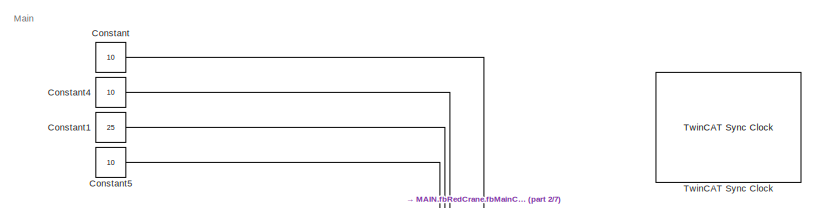
[diagram: root canvas - part 1/7, top left region]
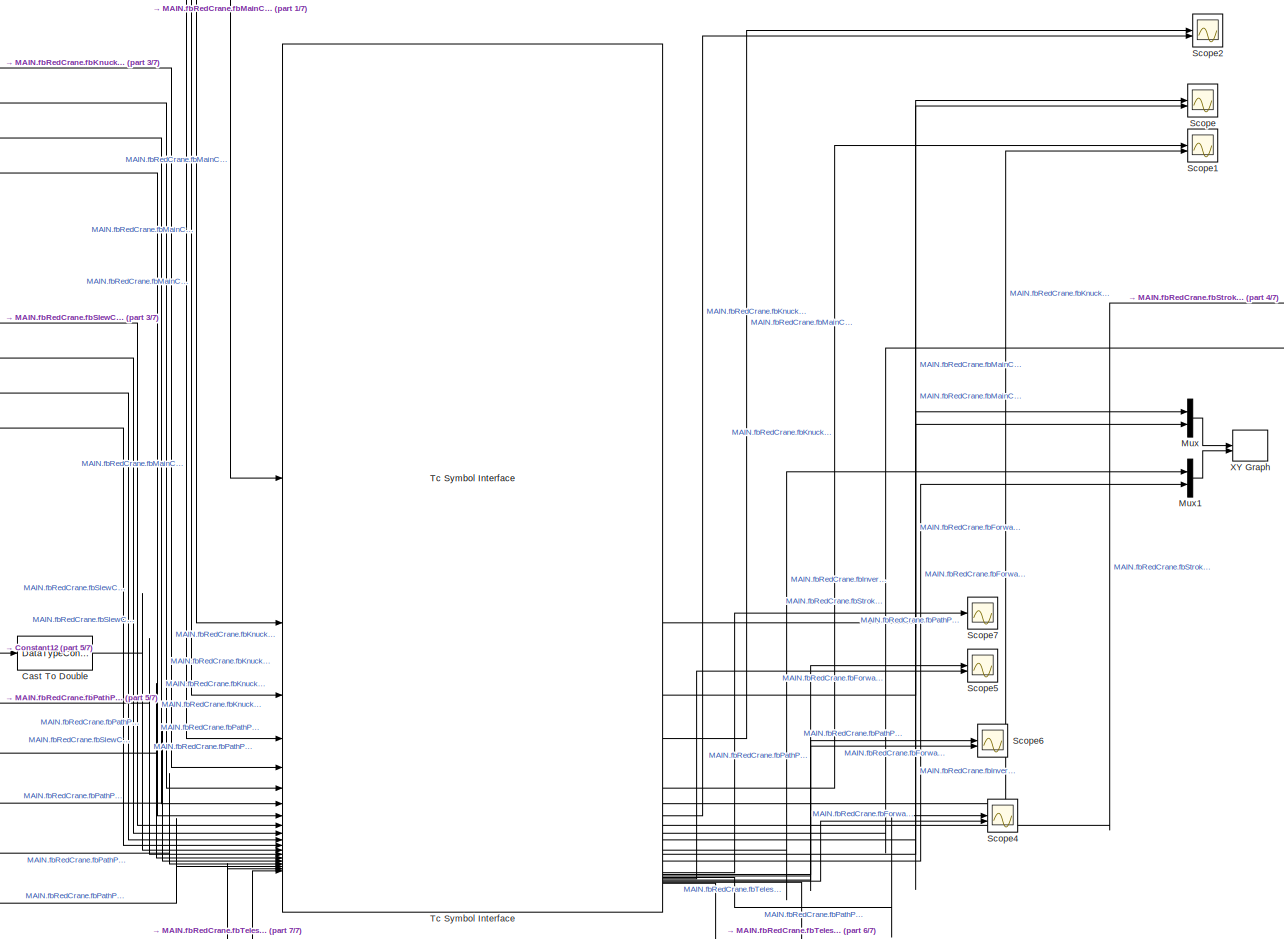
[diagram: root canvas - part 2/7, central region]
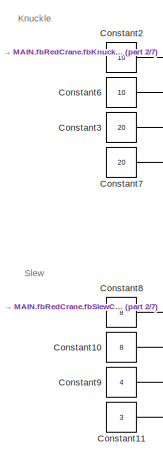
[diagram: root canvas - part 3/7, middle left region]
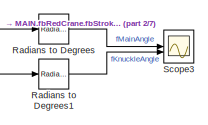
[diagram: root canvas - part 4/7, middle right region]
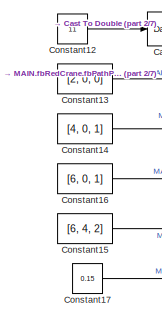
[diagram: root canvas - part 5/7, bottom left region]
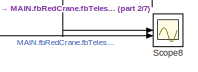
[diagram: root canvas - part 6/7, bottom center region]
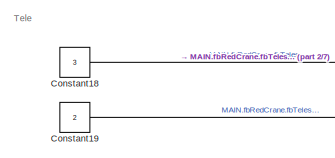
[diagram: root canvas - part 7/7, bottom left region]
MODEL slx_60fb69a7b723
KIND model
CONFIG AbsTol = auto
CONFIG EnableMultiTasking = off
CONFIG FixedStep = 0.01
CONFIG MaxStep = auto
CONFIG MinStep = auto
CONFIG RelTol = 1e-3
CONFIG SampleTimeConstraint = Unconstrained
CONFIG SolverName = FixedStepAuto
CONFIG StartTime = 0.0
CONFIG StopTime = inf
BLOCK [DataTypeConversion] Cast To Double
  OutDataTypeStr = uint16
  RndMeth = Floor
  SaturateOnIntegerOverflow = off
BLOCK [Constant] Constant
  Value = 10
BLOCK [Constant] Constant1
  Value = 25
BLOCK [Constant] Constant10
  Value = 8
BLOCK [Constant] Constant11
  Value = 3
BLOCK [Constant] Constant12
  Value = 11
BLOCK [Constant] Constant13
  Value = [2, 0,  0]
BLOCK [Constant] Constant14
  Value = [4, 0, 1]
BLOCK [Constant] Constant15
  Value = [6, 4,  2]
BLOCK [Constant] Constant16
  Value = [6, 0,  1]
BLOCK [Constant] Constant17
  Value = 0.15
BLOCK [Constant] Constant18
  Value = 3
BLOCK [Constant] Constant19
  Value = 2
BLOCK [Constant] Constant2
  Value = 10
BLOCK [Constant] Constant3
  Value = 20
BLOCK [Constant] Constant4
  Value = 10
BLOCK [Constant] Constant5
  Value = 10
BLOCK [Constant] Constant6
  Value = 10
BLOCK [Constant] Constant7
  Value = 20
BLOCK [Constant] Constant8
  Value = 8
BLOCK [Constant] Constant9
  Value = 4
BLOCK [Mux] Mux
  DisplayOption = bar
  Inputs = 2
BLOCK [Mux] Mux1
  DisplayOption = bar
  Inputs = 2
BLOCK [Reference] Radians to Degrees  REF=simulink_extras/Transformations/Radians
to Degrees
  Commented = on
  SourceBlock = simulink_extras/Transformations/Radians\nto Degrees
  SourceType = RadiansToDegrees
BLOCK [Reference] Radians to Degrees1  REF=simulink_extras/Transformations/Radians
to Degrees
  Commented = on
  SourceBlock = simulink_extras/Transformations/Radians\nto Degrees
  SourceType = RadiansToDegrees
BLOCK [Scope] Scope
  Floating = off
  NumInputPorts = 2
  ScopeSpecificationString = Simulink.scopes.TimeScopeBlockCfg('CurrentConfiguration', extmgr.ConfigurationSet(extmgr.Configuration('Core','General UI',true),extmgr.Configuration('Core','Source UI',true),extmgr.Configuration('Sources','WiredSimulink',true),extmgr.Configuration('Visuals','Time Domain',true,'SerializedDisplays',{struct('MinYLimReal','-0.00197','MaxYLimReal','1.00396','YLabelReal','','MinYLimMag','0.00000','MaxY...<+1648ch>
BLOCK [Scope] Scope1
  Floating = off
  NumInputPorts = 2
  ScopeSpecificationString = Simulink.scopes.TimeScopeBlockCfg('CurrentConfiguration', extmgr.ConfigurationSet(extmgr.Configuration('Core','General UI',true),extmgr.Configuration('Core','Source UI',true),extmgr.Configuration('Sources','WiredSimulink',true,'DataLoggingVariableName','ScopeData1'),extmgr.Configuration('Visuals','Time Domain',true,'SerializedDisplays',{struct('MinYLimReal','0.22865','MaxYLimReal','0.4617','YLabel...<+1738ch>
BLOCK [Scope] Scope2
  Floating = off
  NumInputPorts = 2
  ScopeSpecificationString = Simulink.scopes.TimeScopeBlockCfg('CurrentConfiguration', extmgr.ConfigurationSet(extmgr.Configuration('Core','General UI',true),extmgr.Configuration('Core','Source UI',true),extmgr.Configuration('Sources','WiredSimulink',true,'DataLoggingVariableName','ScopeData1'),extmgr.Configuration('Visuals','Time Domain',true,'SerializedDisplays',{struct('MinYLimReal','-416814.61619','MaxYLimReal','3751330.9...<+1621ch>
BLOCK [Scope] Scope3
  Commented = on
  Floating = off
  NumInputPorts = 2
  ScopeSpecificationString = Simulink.scopes.TimeScopeBlockCfg('CurrentConfiguration', extmgr.ConfigurationSet(extmgr.Configuration('Core','General UI',true),extmgr.Configuration('Core','Source UI',true),extmgr.Configuration('Sources','WiredSimulink',true,'DataLoggingVariableName','ScopeData2'),extmgr.Configuration('Visuals','Time Domain',true,'SerializedDisplays',{struct('MinYLimReal','-61.2033','MaxYLimReal','4.40093','YLab...<+1522ch>
BLOCK [Scope] Scope4
  Floating = off
  NumInputPorts = 2
  ScopeSpecificationString = Simulink.scopes.TimeScopeBlockCfg('CurrentConfiguration', extmgr.ConfigurationSet(extmgr.Configuration('Core','General UI',true),extmgr.Configuration('Core','Source UI',true),extmgr.Configuration('Sources','WiredSimulink',true,'DataLoggingVariableName','ScopeData1'),extmgr.Configuration('Visuals','Time Domain',true,'SerializedDisplays',{struct('MinYLimReal','-0.10166','MaxYLimReal','0.15619','YLab...<+1579ch>
BLOCK [Scope] Scope5
  Floating = off
  NumInputPorts = 2
  ScopeSpecificationString = Simulink.scopes.TimeScopeBlockCfg('CurrentConfiguration', extmgr.ConfigurationSet(extmgr.Configuration('Core','General UI',true),extmgr.Configuration('Core','Source UI',true),extmgr.Configuration('Sources','WiredSimulink',true,'DataLoggingVariableName','ScopeData2'),extmgr.Configuration('Visuals','Time Domain',true,'SerializedDisplays',{struct('MinYLimReal','1.87013','MaxYLimReal','2.19047','YLabe...<+1578ch>
BLOCK [Scope] Scope6
  Floating = off
  NumInputPorts = 2
  ScopeSpecificationString = Simulink.scopes.TimeScopeBlockCfg('CurrentConfiguration', extmgr.ConfigurationSet(extmgr.Configuration('Core','General UI',true),extmgr.Configuration('Core','Source UI',true),extmgr.Configuration('Sources','WiredSimulink',true,'DataLoggingVariableName','ScopeData3'),extmgr.Configuration('Visuals','Time Domain',true,'SerializedDisplays',{struct('MinYLimReal','-0.15477','MaxYLimReal','0.12107','YLab...<+1624ch>
BLOCK [Scope] Scope7
  Floating = off
  NumInputPorts = 1
  ScopeSpecificationString = Simulink.scopes.TimeScopeBlockCfg('CurrentConfiguration', extmgr.ConfigurationSet(extmgr.Configuration('Core','General UI',true),extmgr.Configuration('Core','Source UI',true),extmgr.Configuration('Sources','WiredSimulink',true,'DataLoggingVariableName','ScopeData4'),extmgr.Configuration('Visuals','Time Domain',true,'SerializedDisplays',{struct('MinYLimReal','-1.00000','MaxYLimReal','1.00000','YLab...<+1561ch>
BLOCK [Scope] Scope8
  Floating = off
  NumInputPorts = 2
  ScopeSpecificationString = Simulink.scopes.TimeScopeBlockCfg('CurrentConfiguration', extmgr.ConfigurationSet(extmgr.Configuration('Core','General UI',true),extmgr.Configuration('Core','Source UI',true),extmgr.Configuration('Sources','WiredSimulink',true,'DataLoggingVariableName','ScopeData1'),extmgr.Configuration('Visuals','Time Domain',true,'SerializedDisplays',{struct('MinYLimReal','-0.01246','MaxYLimReal','0.11211','YLab...<+1603ch>
BLOCK [Reference] Tc Symbol Interface  REF=TcSimInterface/Tc Symbol Interface
  SourceBlock = TcSimInterface/Tc Symbol Interface
  SourceProductName = Beckhoff TwinCAT Interface
  SourceType = Tc Symbol Interface
BLOCK [Reference] TwinCAT Sync Clock  REF=TcSimInterface/TwinCAT Sync Clock
  SourceBlock = TcSimInterface/TwinCAT Sync Clock
  SourceProductName = Beckhoff TwinCAT Interface
  SourceType = TwinCAT Sync Clock
BLOCK [Record] XY Graph
  CompatibilityTag = XY
  FileSettingsInternal = {"entries":[{"content":{"excelSettings":{"content":{},"type":"Streamout.ExcelSettings"}},"type":"Streamout.FileSettingStorage","uuid":""}],"packageUris":["http:\/\/schema.mathworks.com\/mf0\/streamout_blocks\/R2020a"],"version":"1.0"}
  Layout = [1 1]
  SignalsInternal = {"entries":[{"content":{"signals":[{"content":{"blockPath":[],"dimensions":[2],"domain":"","hasChildren":true,"lineColor":"#64d413","lineWidth":2,"port":1,"sid":[""],"signalID":1,"signalName":"Mux"},"type":"RecordBlkView.Signal","uuid":""},{"content":{"blockPath":[],"channel":[1],"dimensions":[2],"domain":"","lineColor":"#ff13a6","lineWidth":2,"parentID":1,"plots":[ 1 ],"port":1,"sid":[""],"signal...<+1101ch>
  VisualizationBindings = {"xyplotplugin":{"info":[{"series":[],"subplotID":1}]}}
ANNOTATION (root): Knuckle
ANNOTATION (root): Main
ANNOTATION (root): Slew
ANNOTATION (root): Tele
LINE Cast To Double:1 -> Tc Symbol Interface:13
LINE Constant10:1 -> Tc Symbol Interface:10
LINE Constant11:1 -> Tc Symbol Interface:12
LINE Constant12:1 -> Cast To Double:1
LINE Constant13:1 -> Tc Symbol Interface:14
LINE Constant14:1 -> Tc Symbol Interface:15
LINE Constant15:1 -> Tc Symbol Interface:17
LINE Constant16:1 -> Tc Symbol Interface:16
LINE Constant17:1 -> Tc Symbol Interface:18
LINE Constant18:1 -> Tc Symbol Interface:19
LINE Constant19:1 -> Tc Symbol Interface:20
LINE Constant1:1 -> Tc Symbol Interface:3
LINE Constant2:1 -> Tc Symbol Interface:5
LINE Constant3:1 -> Tc Symbol Interface:7
LINE Constant4:1 -> Tc Symbol Interface:2
LINE Constant5:1 -> Tc Symbol Interface:4
LINE Constant6:1 -> Tc Symbol Interface:6
LINE Constant7:1 -> Tc Symbol Interface:8
LINE Constant8:1 -> Tc Symbol Interface:9
LINE Constant9:1 -> Tc Symbol Interface:11
LINE Constant:1 -> Tc Symbol Interface:1
LINE Mux1:1 -> XY Graph:2
LINE Mux:1 -> XY Graph:1
LINE Radians to Degrees1:1 -> Scope3:2
LINE Radians to Degrees:1 -> Scope3:1
LINE Tc Symbol Interface:10 -> Radians to Degrees1:1
LINE Tc Symbol Interface:11 -> Mux:1
LINE Tc Symbol Interface:13 -> Mux1:1
LINE Tc Symbol Interface:14 -> Mux:2
LINE Tc Symbol Interface:16 -> Mux1:2
LINE Tc Symbol Interface:2 -> Scope:1
LINE Tc Symbol Interface:21 -> Scope7:1
LINE Tc Symbol Interface:22 -> Scope5:1
LINE Tc Symbol Interface:23 -> Scope6:1
LINE Tc Symbol Interface:24 -> Scope4:1
LINE Tc Symbol Interface:25 -> Scope5:2
LINE Tc Symbol Interface:26 -> Scope6:2
LINE Tc Symbol Interface:27 -> Scope4:2
LINE Tc Symbol Interface:28 -> Scope8:1
LINE Tc Symbol Interface:29 -> Scope8:2
LINE Tc Symbol Interface:3 -> Scope:2
LINE Tc Symbol Interface:4 -> Scope2:1
LINE Tc Symbol Interface:6 -> Scope1:1
LINE Tc Symbol Interface:7 -> Scope1:2
LINE Tc Symbol Interface:8 -> Scope2:2
LINE Tc Symbol Interface:9 -> Radians to Degrees:1
